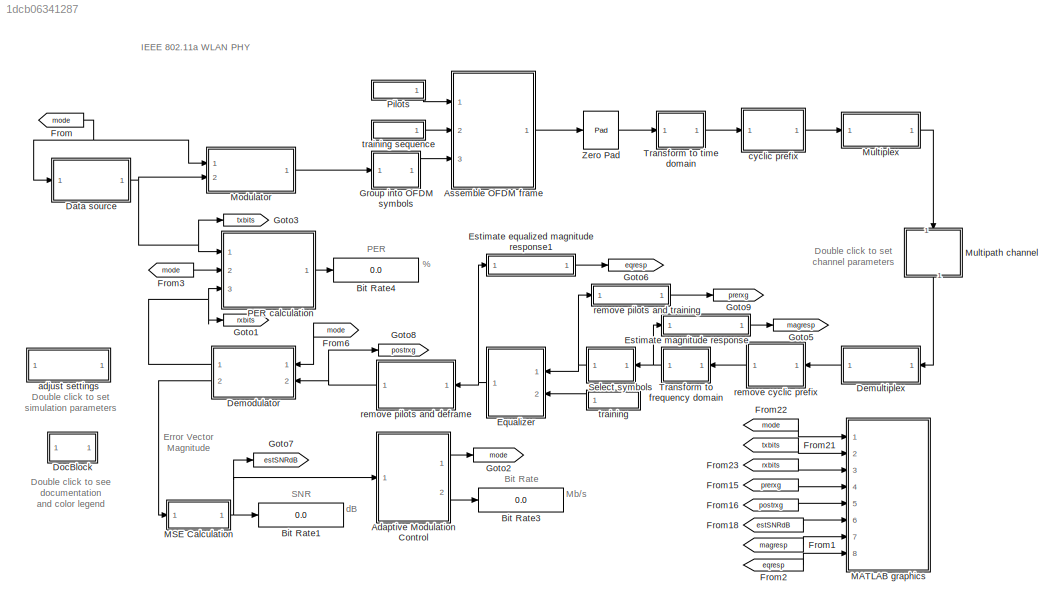
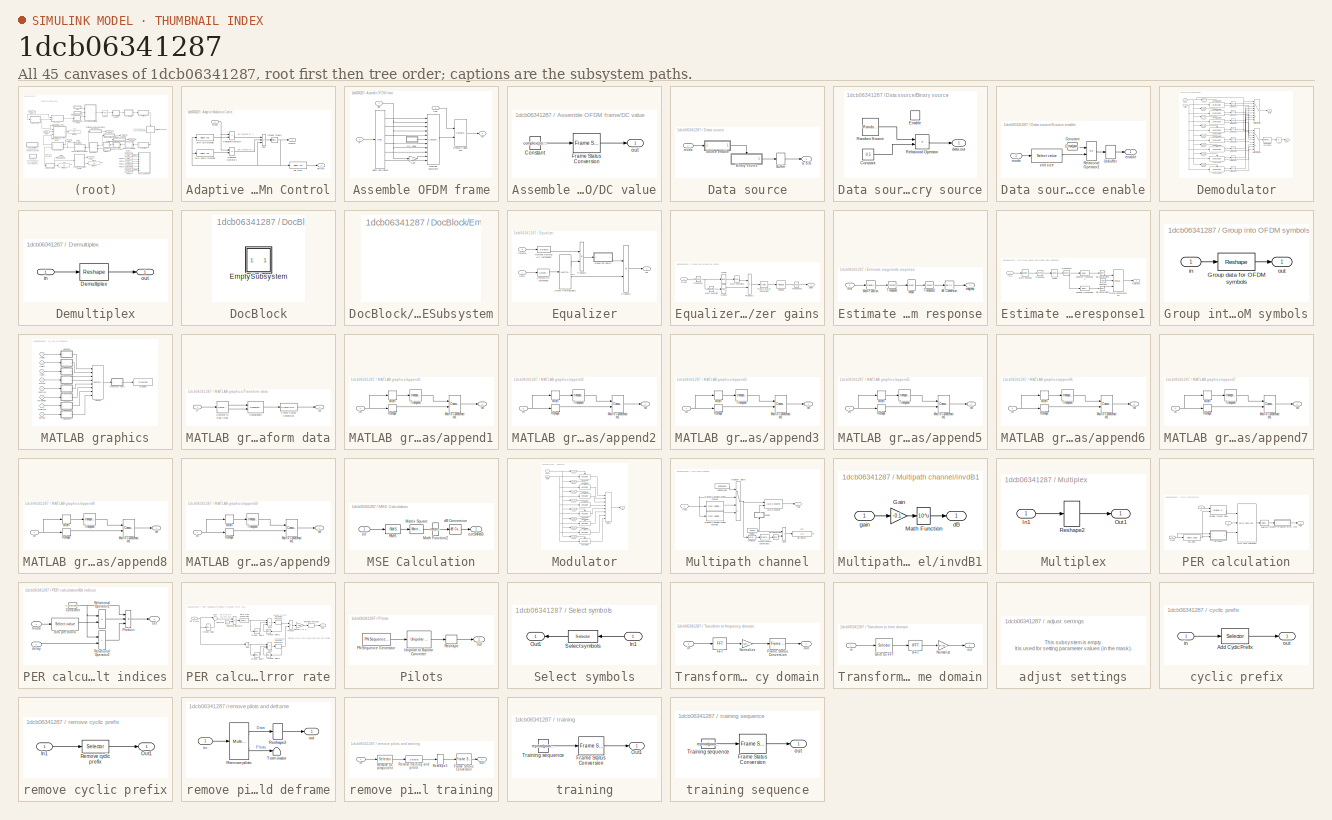
[diagram: thumbnail index - all 45 canvases of the model, root first then tree order]
MODEL slx_1dcb06341287
KIND model
CONFIG AbsTol = auto
CONFIG EnableMultiTasking = off
CONFIG FixedStep = auto
CONFIG MaxStep = auto
CONFIG MinStep = auto
CONFIG PreLoadFcn = load IEEE80211a_init;
CONFIG RelTol = 1e-3
CONFIG SampleTimeConstraint = Unconstrained
CONFIG SolverName = FixedStepDiscrete
CONFIG StartTime = 0.0
CONFIG StopTime = inf
BLOCK [SubSystem] Adaptive Modulation Control
  Ports = [1, 2]
  RequestExecContextInheritance = off
BLOCK [Sum] Adaptive Modulation Control/Add1
  IconShape = rectangular
  Inputs = +-+
  OutDataTypeStr = double
  Ports = [3, 1]
BLOCK [Reference] Adaptive Modulation Control/Bit Rate  REF=IEEE80211a_lib/Select value
  Ports = [1, 1]
  SourceBlock = IEEE80211a_lib/Select value
BLOCK [Reference] Adaptive Modulation Control/Integer Delay2  REF=dspobslib/Integer Delay
  AttributesFormatString = \n
  Ports = [1, 1]
  SourceBlock = dspobslib/Integer Delay
  SourceProductBaseCode = DS
  SourceType = Integer Delay
BLOCK [RelationalOperator] Adaptive Modulation Control/Relational Operator
  InputSameDT = off
  Operator = >
  Ports = [2, 1]
BLOCK [RelationalOperator] Adaptive Modulation Control/Relational Operator1
  InputSameDT = off
  Operator = <=
  Ports = [2, 1]
BLOCK [Reference] Adaptive Modulation Control/SNR down threshold  REF=IEEE80211a_lib/Select value
  Ports = [1, 1]
  SourceBlock = IEEE80211a_lib/Select value
BLOCK [Reference] Adaptive Modulation Control/SNR up threshold  REF=IEEE80211a_lib/Select value
  Ports = [1, 1]
  SourceBlock = IEEE80211a_lib/Select value
BLOCK [Outport] Adaptive Modulation Control/birRate
  Port = 2
BLOCK [Outport] Adaptive Modulation Control/modIdx
BLOCK [Inport] Adaptive Modulation Control/snrEst
BLOCK [SubSystem] Assemble OFDM frame
  Ports = [3, 1]
  RequestExecContextInheritance = off
BLOCK [Concatenate] Assemble OFDM frame/Assemble Subcarriers
  Mode = Multidimensional array
  NumInputs = 11
  Ports = [11, 1]
BLOCK [SubSystem] Assemble OFDM frame/DC value
  Ports = [0, 1]
  RequestExecContextInheritance = off
BLOCK [Constant] Assemble OFDM frame/DC value/Constant
  Value = complex(zeros(1,params.OFDMSymPerFrame))
  VectorParams1D = off
BLOCK [Reference] Assemble OFDM frame/DC value/Frame Status Conversion  REF=dspobslib/Frame Status
Conversion
  Ports = [1, 1]
  SourceBlock = dspobslib/Frame Status\nConversion
  SourceProductBaseCode = DS
  SourceType = Frame Status Conversion
BLOCK [Outport] Assemble OFDM frame/DC value/out
BLOCK [Gain] Assemble OFDM frame/Gain
  Gain = -1
  OutDataTypeStr = Inherit: Same as input
  ParamDataTypeStr = Inherit: Same as input
  SaturateOnIntegerOverflow = on
BLOCK [Concatenate] Assemble OFDM frame/Prepend training seq
  ConcatenateDimension = 2
  Mode = Multidimensional array
  Ports = [2, 1]
BLOCK [Reference] Assemble OFDM frame/Select data blocks  REF=dspindex/Multiport
Selector
  Ports = [1, 6]
  SourceBlock = dspindex/Multiport\nSelector
  SourceProductBaseCode = DS
  SourceType = Multiport Selector
BLOCK [Inport] Assemble OFDM frame/in
  Port = 3
BLOCK [Outport] Assemble OFDM frame/out
BLOCK [Inport] Assemble OFDM frame/pilot
BLOCK [Inport] Assemble OFDM frame/train
  Port = 2
BLOCK [Display] Bit Rate1
  Decimation = 1
  Ports = [1]
BLOCK [Display] Bit Rate3
  Decimation = 1
  Ports = [1]
BLOCK [Display] Bit Rate4
  Decimation = 1
  Ports = [1]
BLOCK [SubSystem] Data source
  Ports = [1, 1]
  RequestExecContextInheritance = off
BLOCK [SubSystem] Data source/Binary source
  Ports = [0, 1, 1]
  RequestExecContextInheritance = off
  TreatAsAtomicUnit = on
BLOCK [Constant] Data source/Binary source/Constant
  Value = 0.5
BLOCK [EnablePort] Data source/Binary source/Enable
  Ports = []
BLOCK [Reference] Data source/Binary source/Random Source  REF=dspsrcs4/Random
Source
  Ports = [0, 1]
  SourceBlock = dspsrcs4/Random\nSource
  SourceProductBaseCode = DS
  SourceType = Random Source
BLOCK [RelationalOperator] Data source/Binary source/Relational Operator
  Operator = >
  OutDataTypeStr = float('double')
  Ports = [2, 1]
BLOCK [Outport] Data source/Binary source/data out
  InitialOutput = 0
  OutputWhenDisabled = reset
BLOCK [Buffer] Data source/Buffer
  N = params.maxBitsPerBlock
BLOCK [SubSystem] Data source/Source enable
  Ports = [1, 1]
  RequestExecContextInheritance = off
BLOCK [Constant] Data source/Source enable/Constant
  Value = (1:max(params.nS)).'
BLOCK [RelationalOperator] Data source/Source enable/Relational Operator1
  Operator = <=
  OutDataTypeStr = float('double')
  Ports = [2, 1]
BLOCK [Unbuffer] Data source/Source enable/Unbuffer
  Ports = [1, 1]
BLOCK [Outport] Data source/Source enable/enable
BLOCK [Inport] Data source/Source enable/mode
BLOCK [Reference] Data source/Source enable/slot size  REF=IEEE80211a_lib/Select value
  Ports = [1, 1]
  SourceBlock = IEEE80211a_lib/Select value
BLOCK [Inport] Data source/mode
BLOCK [Outport] Data source/tx bits
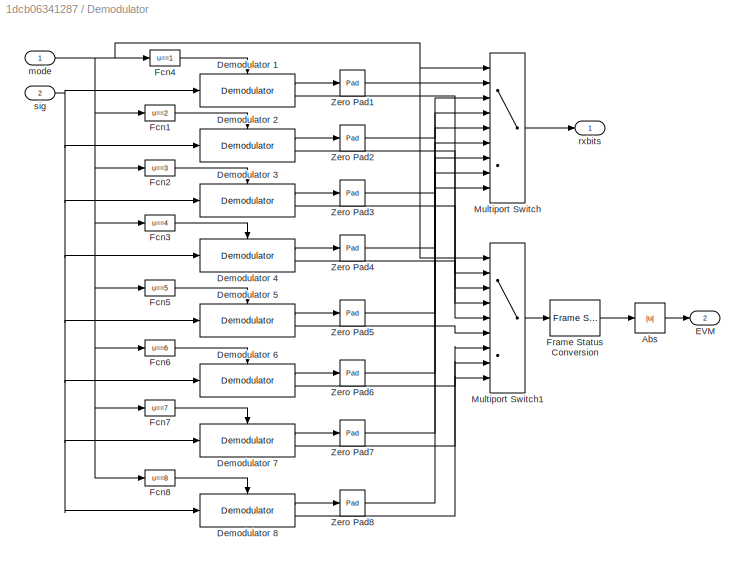
BLOCK [SubSystem] Demodulator
  Ports = [2, 2]
  RequestExecContextInheritance = off
BLOCK [Abs] Demodulator/Abs
BLOCK [Reference] Demodulator/Demodulator 1  REF=IEEE80211a_lib/Demodulator
  Ports = [1, 2, 1]
  SourceBlock = IEEE80211a_lib/Demodulator
  SourceType = QAM Demodulator-Decoder.
BLOCK [Reference] Demodulator/Demodulator 2  REF=IEEE80211a_lib/Demodulator
  Ports = [1, 2, 1]
  SourceBlock = IEEE80211a_lib/Demodulator
  SourceType = QAM Demodulator-Decoder.
BLOCK [Reference] Demodulator/Demodulator 3  REF=IEEE80211a_lib/Demodulator
  Ports = [1, 2, 1]
  SourceBlock = IEEE80211a_lib/Demodulator
  SourceType = QAM Demodulator-Decoder.
BLOCK [Reference] Demodulator/Demodulator 4  REF=IEEE80211a_lib/Demodulator
  Ports = [1, 2, 1]
  SourceBlock = IEEE80211a_lib/Demodulator
  SourceType = QAM Demodulator-Decoder.
BLOCK [Reference] Demodulator/Demodulator 5  REF=IEEE80211a_lib/Demodulator
  Ports = [1, 2, 1]
  SourceBlock = IEEE80211a_lib/Demodulator
  SourceType = QAM Demodulator-Decoder.
BLOCK [Reference] Demodulator/Demodulator 6  REF=IEEE80211a_lib/Demodulator
  Ports = [1, 2, 1]
  SourceBlock = IEEE80211a_lib/Demodulator
  SourceType = QAM Demodulator-Decoder.
BLOCK [Reference] Demodulator/Demodulator 7  REF=IEEE80211a_lib/Demodulator
  Ports = [1, 2, 1]
  SourceBlock = IEEE80211a_lib/Demodulator
  SourceType = QAM Demodulator-Decoder.
BLOCK [Reference] Demodulator/Demodulator 8  REF=IEEE80211a_lib/Demodulator
  Ports = [1, 2, 1]
  SourceBlock = IEEE80211a_lib/Demodulator
  SourceType = QAM Demodulator-Decoder.
BLOCK [Outport] Demodulator/EVM
  Port = 2
BLOCK [Fcn] Demodulator/Fcn1
  Expr = u==2
BLOCK [Fcn] Demodulator/Fcn2
  Expr = u==3
BLOCK [Fcn] Demodulator/Fcn3
  Expr = u==4
BLOCK [Fcn] Demodulator/Fcn4
  Expr = u==1
BLOCK [Fcn] Demodulator/Fcn5
  Expr = u==5
BLOCK [Fcn] Demodulator/Fcn6
  Expr = u==6
BLOCK [Fcn] Demodulator/Fcn7
  Expr = u==7
BLOCK [Fcn] Demodulator/Fcn8
  Expr = u==8
BLOCK [Reference] Demodulator/Frame Status Conversion  REF=dspobslib/Frame Status
Conversion
  Ports = [1, 1]
  SourceBlock = dspobslib/Frame Status\nConversion
  SourceProductBaseCode = DS
  SourceType = Frame Status Conversion
BLOCK [MultiPortSwitch] Demodulator/Multiport Switch
  InputSameDT = off
  Inputs = 8
  Ports = [9, 1]
BLOCK [MultiPortSwitch] Demodulator/Multiport Switch1
  InputSameDT = off
  Inputs = 8
  Ports = [9, 1]
BLOCK [Reference] Demodulator/Zero Pad1  REF=dspsigops/Pad
  AttributesFormatString = \n
  Ports = [1, 1]
  SourceBlock = dspsigops/Pad
  SourceProductBaseCode = DS
  SourceType = Pad
BLOCK [Reference] Demodulator/Zero Pad2  REF=dspsigops/Pad
  AttributesFormatString = \n
  Ports = [1, 1]
  SourceBlock = dspsigops/Pad
  SourceProductBaseCode = DS
  SourceType = Pad
BLOCK [Reference] Demodulator/Zero Pad3  REF=dspsigops/Pad
  AttributesFormatString = \n
  Ports = [1, 1]
  SourceBlock = dspsigops/Pad
  SourceProductBaseCode = DS
  SourceType = Pad
BLOCK [Reference] Demodulator/Zero Pad4  REF=dspsigops/Pad
  AttributesFormatString = \n
  Ports = [1, 1]
  SourceBlock = dspsigops/Pad
  SourceProductBaseCode = DS
  SourceType = Pad
BLOCK [Reference] Demodulator/Zero Pad5  REF=dspsigops/Pad
  AttributesFormatString = \n
  Ports = [1, 1]
  SourceBlock = dspsigops/Pad
  SourceProductBaseCode = DS
  SourceType = Pad
BLOCK [Reference] Demodulator/Zero Pad6  REF=dspsigops/Pad
  AttributesFormatString = \n
  Ports = [1, 1]
  SourceBlock = dspsigops/Pad
  SourceProductBaseCode = DS
  SourceType = Pad
BLOCK [Reference] Demodulator/Zero Pad7  REF=dspsigops/Pad
  AttributesFormatString = \n
  Ports = [1, 1]
  SourceBlock = dspsigops/Pad
  SourceProductBaseCode = DS
  SourceType = Pad
BLOCK [Reference] Demodulator/Zero Pad8  REF=dspsigops/Pad
  AttributesFormatString = \n
  Ports = [1, 1]
  SourceBlock = dspsigops/Pad
  SourceProductBaseCode = DS
  SourceType = Pad
BLOCK [Inport] Demodulator/mode
BLOCK [Outport] Demodulator/rxbits
BLOCK [Inport] Demodulator/sig
  Port = 2
BLOCK [SubSystem] Demultiplex
  Ports = [1, 1]
  RequestExecContextInheritance = off
BLOCK [Reshape] Demultiplex/Demultiplex
  OutputDimensionality = Customize
  OutputDimensions = [params.NFFT2  params.OFDMTotSymPerFrame]
  Ports = [1, 1]
BLOCK [Inport] Demultiplex/in
BLOCK [Outport] Demultiplex/out
BLOCK [SubSystem] DocBlock
  CopyFcn = docblock('breaklink',gcb);
  DeleteFcn = docblock('close_document',gcb);
  OpenFcn = docblock('edit_document',gcb);
  Ports = []
  PreSaveFcn = docblock('save_document',gcb);
  RequestExecContextInheritance = off
  UserDataPersistent = on
BLOCK [SubSystem] DocBlock/EmptySubsystem
  Ports = []
  RequestExecContextInheritance = off
BLOCK [SubSystem] Equalizer
  Ports = [2, 1]
  RequestExecContextInheritance = off
BLOCK [SubSystem] Equalizer/Equalizer gains
  Ports = [1, 1]
  RequestExecContextInheritance = off
BLOCK [Reference] Equalizer/Equalizer gains/Frame Status Conversion  REF=dspobslib/Frame Status
Conversion
  Ports = [1, 1]
  SourceBlock = dspobslib/Frame Status\nConversion
  SourceProductBaseCode = DS
  SourceType = Frame Status Conversion
BLOCK [Math] Equalizer/Equalizer gains/Math Function
  Operator = magnitude^2
  Ports = [1, 1]
  SignedPower = on
BLOCK [Math] Equalizer/Equalizer gains/Math Function1
  Operator = conj
  Ports = [1, 1]
  SignedPower = on
BLOCK [Reference] Equalizer/Equalizer gains/Mean  REF=dspstat3/Mean
  Ports = [1, 1]
  SourceBlock = dspstat3/Mean
  SourceProductBaseCode = DS
  SourceType = Mean
BLOCK [Reference] Equalizer/Equalizer gains/Mean1  REF=dspstat3/Mean
  Ports = [1, 1]
  SourceBlock = dspstat3/Mean
  SourceProductBaseCode = DS
  SourceType = Mean
BLOCK [Product] Equalizer/Equalizer gains/Product3
  Inputs = */
  OutDataTypeStr = Inherit: Same as first input
  Ports = [2, 1]
  SaturateOnIntegerOverflow = on
BLOCK [Reference] Equalizer/Equalizer gains/Repeat  REF=dspsigops/Repeat
  Ports = [1, 1]
  SourceBlock = dspsigops/Repeat
  SourceProductBaseCode = DS
  SourceType = Repeat
BLOCK [Math] Equalizer/Equalizer gains/Transpose
  Operator = transpose
  Ports = [1, 1]
BLOCK [Math] Equalizer/Equalizer gains/Transpose1
  Operator = transpose
  Ports = [1, 1]
BLOCK [Inport] Equalizer/Equalizer gains/ch est
BLOCK [Outport] Equalizer/Equalizer gains/gains
BLOCK [Product] Equalizer/Product1
  Inputs = /*
  OutDataTypeStr = Inherit: Same as first input
  Ports = [2, 1]
  SaturateOnIntegerOverflow = on
BLOCK [Product] Equalizer/Product2
  Inputs = **
  OutDataTypeStr = Inherit: Same as first input
  Ports = [2, 1]
  SaturateOnIntegerOverflow = on
BLOCK [Selector] Equalizer/Remove DC component
  IndexOptions = Index vector (dialog),Select all
  Indices = [1:26 28:53],-1
  InputPortWidth = 53
  NumberOfDimensions = 2
  OutputSizes = 1
  Ports = [1, 1]
BLOCK [Selector] Equalizer/Remove training DC component
  IndexOptions = Index vector (dialog),Select all
  Indices = [1:26 28:53],-1
  InputPortWidth = 53
  NumberOfDimensions = 2
  OutputSizes = 1
  Ports = [1, 1]
BLOCK [Reference] Equalizer/Select training//data  REF=dspindex/Multiport
Selector
  Ports = [1, 2]
  SourceBlock = dspindex/Multiport\nSelector
  SourceProductBaseCode = DS
  SourceType = Multiport Selector
BLOCK [Outport] Equalizer/out
BLOCK [Inport] Equalizer/rxsig
BLOCK [Inport] Equalizer/trainsig
  Port = 2
BLOCK [SubSystem] Estimate equalized magnitude response1
  Ports = [1, 1]
  RequestExecContextInheritance = off
BLOCK [Constant] Estimate equalized magnitude response1/Constant
  Value = NaN
BLOCK [Math] Estimate equalized magnitude response1/Math Function
  Operator = magnitude^2
  Ports = [1, 1]
  SignedPower = on
BLOCK [Concatenate] Estimate equalized magnitude response1/Matrix Concatenation
  Mode = Multidimensional array
  NumInputs = 3
  Ports = [3, 1]
BLOCK [Reference] Estimate equalized magnitude response1/Mean  REF=dspstat3/Mean
  Ports = [1, 1]
  SourceBlock = dspstat3/Mean
  SourceProductBaseCode = DS
  SourceType = Mean
BLOCK [Math] Estimate equalized magnitude response1/Transpose
  Operator = transpose
  Ports = [1, 1]
BLOCK [Math] Estimate equalized magnitude response1/Transpose1
  Operator = transpose
  Ports = [1, 1]
BLOCK [Reference] Estimate equalized magnitude response1/dB Conversion1  REF=dspmathops/dB Conversion
  Ports = [1, 1]
  SourceBlock = dspmathops/dB Conversion
  SourceProductBaseCode = DS
  SourceType = dB Conversion
BLOCK [Reference] Estimate equalized magnitude response1/dB Conversion2  REF=dspmathops/dB Conversion
  Ports = [1, 1]
  SourceBlock = dspmathops/dB Conversion
  SourceProductBaseCode = DS
  SourceType = dB Conversion
BLOCK [Inport] Estimate equalized magnitude response1/ffts
BLOCK [Outport] Estimate equalized magnitude response1/magresp
BLOCK [Selector] Estimate equalized magnitude response1/negative frequencies
  IndexOptions = Index vector (dialog)
  Indices = [1:params.NST/2]
  InputPortWidth = params.NST
  OutputSizes = 1
  Ports = [1, 1]
BLOCK [Selector] Estimate equalized magnitude response1/positive frequencies
  IndexOptions = Index vector (dialog)
  Indices = params.NST/2+1:params.NST
  InputPortWidth = params.NST
  OutputSizes = 1
  Ports = [1, 1]
BLOCK [SubSystem] Estimate magnitude response
  Ports = [1, 1]
  RequestExecContextInheritance = off
BLOCK [Math] Estimate magnitude response/Math Function
  Operator = magnitude^2
  Ports = [1, 1]
  SignedPower = on
BLOCK [Reference] Estimate magnitude response/Mean  REF=dspstat3/Mean
  Ports = [1, 1]
  SourceBlock = dspstat3/Mean
  SourceProductBaseCode = DS
  SourceType = Mean
BLOCK [Math] Estimate magnitude response/Transpose
  Operator = transpose
  Ports = [1, 1]
BLOCK [Math] Estimate magnitude response/Transpose1
  Operator = transpose
  Ports = [1, 1]
BLOCK [Reference] Estimate magnitude response/dB Conversion  REF=dspmathops/dB Conversion
  Ports = [1, 1]
  SourceBlock = dspmathops/dB Conversion
  SourceProductBaseCode = DS
  SourceType = dB Conversion
BLOCK [Inport] Estimate magnitude response/ffts
BLOCK [Outport] Estimate magnitude response/magresp
BLOCK [From] From
  GotoTag = mode
BLOCK [From] From1
  GotoTag = magresp
BLOCK [From] From15
  GotoTag = prerxg
BLOCK [From] From16
  GotoTag = postrxg
BLOCK [From] From18
  GotoTag = estSNRdB
BLOCK [From] From2
  GotoTag = eqresp
BLOCK [From] From21
  GotoTag = txbits
BLOCK [From] From22
  GotoTag = mode
BLOCK [From] From23
  GotoTag = rxbits
BLOCK [From] From3
  GotoTag = mode
BLOCK [From] From6
  GotoTag = mode
  NameLocation = top
BLOCK [Goto] Goto1
  GotoTag = rxbits
BLOCK [Goto] Goto2
  GotoTag = mode
BLOCK [Goto] Goto3
  GotoTag = txbits
BLOCK [Goto] Goto5
  GotoTag = magresp
BLOCK [Goto] Goto6
  GotoTag = eqresp
BLOCK [Goto] Goto7
  GotoTag = estSNRdB
BLOCK [Goto] Goto8
  GotoTag = postrxg
BLOCK [Goto] Goto9
  GotoTag = prerxg
  NameLocation = top
BLOCK [SubSystem] Group into OFDM symbols
  Ports = [1, 1]
  RequestExecContextInheritance = off
BLOCK [Reshape] Group into OFDM symbols/Group data for OFDM symbols 
  OutputDimensionality = Customize
  OutputDimensions = [params.NSD params.OFDMSymPerFrame]
  Ports = [1, 1]
BLOCK [Inport] Group into OFDM symbols/in
BLOCK [Outport] Group into OFDM symbols/out
BLOCK [SubSystem] MATLAB graphics
  OpenFcn = IEEE80211a_open_graphics(gcb, 0);
  Ports = [8]
  RequestExecContextInheritance = off
BLOCK [SubSystem] MATLAB graphics/Transform data
  Ports = [1, 1]
  RequestExecContextInheritance = off
BLOCK [ComplexToRealImag] MATLAB graphics/Transform data/Complex to Real-Imag
  Ports = [1, 2]
BLOCK [Concatenate] MATLAB graphics/Transform data/Concatenate
  ConcatenateDimension = 2
  Mode = Multidimensional array
  Ports = [2, 1]
BLOCK [Reference] MATLAB graphics/Transform data/Frame Status Conversion  REF=dspobslib/Frame Status
Conversion
  Ports = [1, 1]
  SourceBlock = dspobslib/Frame Status\nConversion
  SourceProductBaseCode = DS
  SourceType = Frame Status Conversion
BLOCK [Inport] MATLAB graphics/Transform data/in
BLOCK [Outport] MATLAB graphics/Transform data/out
BLOCK [SubSystem] MATLAB graphics/append1
  Ports = [1, 1]
  RequestExecContextInheritance = off
BLOCK [Concatenate] MATLAB graphics/append1/Matrix Concatenation1
  Mode = Multidimensional array
  Ports = [2, 1]
BLOCK [Reshape] MATLAB graphics/append1/Reshape
  OutputDimensionality = Column vector (2-D)
  Ports = [1, 1]
BLOCK [Math] MATLAB graphics/append1/Transpose
  AttributesFormatString = \n
  Operator = transpose
  Ports = [1, 1]
BLOCK [Width] MATLAB graphics/append1/Width
BLOCK [Inport] MATLAB graphics/append1/in
BLOCK [Outport] MATLAB graphics/append1/out
BLOCK [SubSystem] MATLAB graphics/append2
  Ports = [1, 1]
  RequestExecContextInheritance = off
BLOCK [Concatenate] MATLAB graphics/append2/Matrix Concatenation1
  Mode = Multidimensional array
  Ports = [2, 1]
BLOCK [Reshape] MATLAB graphics/append2/Reshape
  OutputDimensionality = Column vector (2-D)
  Ports = [1, 1]
BLOCK [Math] MATLAB graphics/append2/Transpose
  AttributesFormatString = \n
  Operator = transpose
  Ports = [1, 1]
BLOCK [Width] MATLAB graphics/append2/Width
BLOCK [Inport] MATLAB graphics/append2/in
BLOCK [Outport] MATLAB graphics/append2/out
BLOCK [SubSystem] MATLAB graphics/append3
  Ports = [1, 1]
  RequestExecContextInheritance = off
BLOCK [Concatenate] MATLAB graphics/append3/Matrix Concatenation1
  Mode = Multidimensional array
  Ports = [2, 1]
BLOCK [Reshape] MATLAB graphics/append3/Reshape
  OutputDimensionality = Column vector (2-D)
  Ports = [1, 1]
BLOCK [Math] MATLAB graphics/append3/Transpose
  AttributesFormatString = \n
  Operator = transpose
  Ports = [1, 1]
BLOCK [Width] MATLAB graphics/append3/Width
BLOCK [Inport] MATLAB graphics/append3/in
BLOCK [Outport] MATLAB graphics/append3/out
BLOCK [SubSystem] MATLAB graphics/append5
  Ports = [1, 1]
  RequestExecContextInheritance = off
BLOCK [Concatenate] MATLAB graphics/append5/Matrix Concatenation1
  Mode = Multidimensional array
  Ports = [2, 1]
BLOCK [Reshape] MATLAB graphics/append5/Reshape
  OutputDimensionality = Column vector (2-D)
  Ports = [1, 1]
BLOCK [Math] MATLAB graphics/append5/Transpose
  AttributesFormatString = \n
  Operator = transpose
  Ports = [1, 1]
BLOCK [Width] MATLAB graphics/append5/Width
BLOCK [Inport] MATLAB graphics/append5/in
BLOCK [Outport] MATLAB graphics/append5/out
BLOCK [SubSystem] MATLAB graphics/append6
  Ports = [1, 1]
  RequestExecContextInheritance = off
BLOCK [Concatenate] MATLAB graphics/append6/Matrix Concatenation1
  Mode = Multidimensional array
  Ports = [2, 1]
BLOCK [Reshape] MATLAB graphics/append6/Reshape
  OutputDimensionality = Column vector (2-D)
  Ports = [1, 1]
BLOCK [Math] MATLAB graphics/append6/Transpose
  AttributesFormatString = \n
  Operator = transpose
  Ports = [1, 1]
BLOCK [Width] MATLAB graphics/append6/Width
BLOCK [Inport] MATLAB graphics/append6/in
BLOCK [Outport] MATLAB graphics/append6/out
BLOCK [SubSystem] MATLAB graphics/append7
  Ports = [1, 1]
  RequestExecContextInheritance = off
BLOCK [Concatenate] MATLAB graphics/append7/Matrix Concatenation1
  Mode = Multidimensional array
  Ports = [2, 1]
BLOCK [Reshape] MATLAB graphics/append7/Reshape
  OutputDimensionality = Column vector (2-D)
  Ports = [1, 1]
BLOCK [Math] MATLAB graphics/append7/Transpose
  AttributesFormatString = \n
  Operator = transpose
  Ports = [1, 1]
BLOCK [Width] MATLAB graphics/append7/Width
BLOCK [Inport] MATLAB graphics/append7/in
BLOCK [Outport] MATLAB graphics/append7/out
BLOCK [SubSystem] MATLAB graphics/append8
  Ports = [1, 1]
  RequestExecContextInheritance = off
BLOCK [Concatenate] MATLAB graphics/append8/Matrix Concatenation1
  Mode = Multidimensional array
  Ports = [2, 1]
BLOCK [Reshape] MATLAB graphics/append8/Reshape
  OutputDimensionality = Column vector (2-D)
  Ports = [1, 1]
BLOCK [Math] MATLAB graphics/append8/Transpose
  AttributesFormatString = \n
  Operator = transpose
  Ports = [1, 1]
BLOCK [Width] MATLAB graphics/append8/Width
BLOCK [Inport] MATLAB graphics/append8/in
BLOCK [Outport] MATLAB graphics/append8/out
BLOCK [SubSystem] MATLAB graphics/append9
  Ports = [1, 1]
  RequestExecContextInheritance = off
BLOCK [Concatenate] MATLAB graphics/append9/Matrix Concatenation1
  Mode = Multidimensional array
  Ports = [2, 1]
BLOCK [Reshape] MATLAB graphics/append9/Reshape
  OutputDimensionality = Column vector (2-D)
  Ports = [1, 1]
BLOCK [Math] MATLAB graphics/append9/Transpose
  AttributesFormatString = \n
  Operator = transpose
  Ports = [1, 1]
BLOCK [Width] MATLAB graphics/append9/Width
BLOCK [Inport] MATLAB graphics/append9/in
BLOCK [Outport] MATLAB graphics/append9/out
BLOCK [Concatenate] MATLAB graphics/concat
  Mode = Multidimensional array
  NumInputs = 8
  Ports = [8, 1]
BLOCK [Inport] MATLAB graphics/eqresp
  Port = 8
BLOCK [Inport] MATLAB graphics/estSNRdB
  Port = 6
BLOCK [S-Function] MATLAB graphics/graphics
  EnableBusSupport = off
  FunctionName = IEEE80211a_udg
  Parameters = {input_names, extraParams}
  Ports = [1]
  SFcnIsStateOwnerBlock = off
  SFunctionDeploymentMode = off
BLOCK [Inport] MATLAB graphics/magresp
  Port = 7
BLOCK [Inport] MATLAB graphics/mode
BLOCK [Inport] MATLAB graphics/postrxg
  Port = 5
BLOCK [Inport] MATLAB graphics/prerxg
  Port = 4
BLOCK [Inport] MATLAB graphics/rxbits
  Port = 3
BLOCK [Inport] MATLAB graphics/txbits
  Port = 2
BLOCK [SubSystem] MSE Calculation
  Ports = [1, 1]
  RequestExecContextInheritance = off
BLOCK [Math] MSE Calculation/Math Function2
  Operator = reciprocal
  Ports = [1, 1]
  SignedPower = on
BLOCK [Reference] MSE Calculation/Matrix Square  REF=dspmtrx3/Matrix
Square
  Ports = [1, 1]
  SourceBlock = dspmtrx3/Matrix\nSquare
  SourceProductBaseCode = DS
  SourceType = Matrix Square
BLOCK [Reference] MSE Calculation/RMS  REF=dspstat3/RMS
  Ports = [1, 1]
  SourceBlock = dspstat3/RMS
  SourceProductBaseCode = DS
  SourceType = RMS
BLOCK [Reference] MSE Calculation/dB Conversion  REF=dspmathops/dB Conversion
  Ports = [1, 1]
  SourceBlock = dspmathops/dB Conversion
  SourceProductBaseCode = DS
  SourceType = dB Conversion
BLOCK [Inport] MSE Calculation/err
BLOCK [Outport] MSE Calculation/estSNRdB
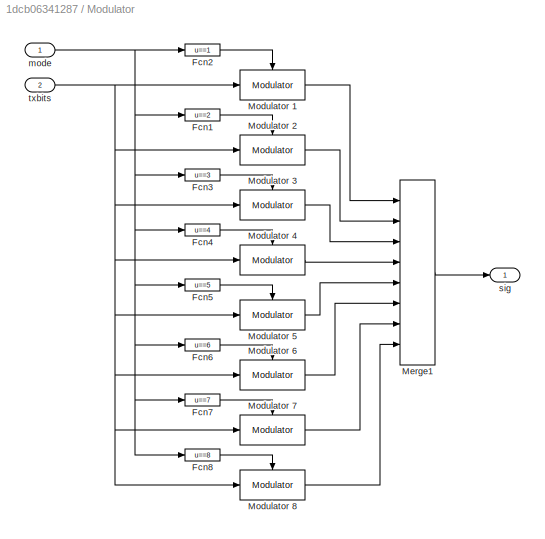
BLOCK [SubSystem] Modulator
  Ports = [2, 1]
  RequestExecContextInheritance = off
BLOCK [Fcn] Modulator/Fcn1
  Expr = u==2
BLOCK [Fcn] Modulator/Fcn2
  Expr = u==1
BLOCK [Fcn] Modulator/Fcn3
  Expr = u==3
BLOCK [Fcn] Modulator/Fcn4
  Expr = u==4
BLOCK [Fcn] Modulator/Fcn5
  Expr = u==5
BLOCK [Fcn] Modulator/Fcn6
  Expr = u==6
BLOCK [Fcn] Modulator/Fcn7
  Expr = u==7
BLOCK [Fcn] Modulator/Fcn8
  Expr = u==8
BLOCK [Merge] Modulator/Merge1
  Inputs = 8
  Ports = [8, 1]
BLOCK [Reference] Modulator/Modulator 1  REF=IEEE80211a_lib/Modulator
  Ports = [1, 1, 1]
  SourceBlock = IEEE80211a_lib/Modulator
  SourceType = QAM Modulator-Coder.
BLOCK [Reference] Modulator/Modulator 2  REF=IEEE80211a_lib/Modulator
  Ports = [1, 1, 1]
  SourceBlock = IEEE80211a_lib/Modulator
  SourceType = QAM Modulator-Coder.
BLOCK [Reference] Modulator/Modulator 3  REF=IEEE80211a_lib/Modulator
  Ports = [1, 1, 1]
  SourceBlock = IEEE80211a_lib/Modulator
  SourceType = QAM Modulator-Coder.
BLOCK [Reference] Modulator/Modulator 4  REF=IEEE80211a_lib/Modulator
  Ports = [1, 1, 1]
  SourceBlock = IEEE80211a_lib/Modulator
  SourceType = QAM Modulator-Coder.
BLOCK [Reference] Modulator/Modulator 5  REF=IEEE80211a_lib/Modulator
  Ports = [1, 1, 1]
  SourceBlock = IEEE80211a_lib/Modulator
  SourceType = QAM Modulator-Coder.
BLOCK [Reference] Modulator/Modulator 6  REF=IEEE80211a_lib/Modulator
  Ports = [1, 1, 1]
  SourceBlock = IEEE80211a_lib/Modulator
  SourceType = QAM Modulator-Coder.
BLOCK [Reference] Modulator/Modulator 7  REF=IEEE80211a_lib/Modulator
  Ports = [1, 1, 1]
  SourceBlock = IEEE80211a_lib/Modulator
  SourceType = QAM Modulator-Coder.
BLOCK [Reference] Modulator/Modulator 8  REF=IEEE80211a_lib/Modulator
  Ports = [1, 1, 1]
  SourceBlock = IEEE80211a_lib/Modulator
  SourceType = QAM Modulator-Coder.
BLOCK [Inport] Modulator/mode
BLOCK [Outport] Modulator/sig
BLOCK [Inport] Modulator/txbits
  Port = 2
BLOCK [SubSystem] Multipath channel
  NameLocation = left
  Ports = [1, 1]
  RequestExecContextInheritance = off
BLOCK [Reference] Multipath channel/AWGN Channel  REF=commchan3/AWGN
Channel
  Ports = [2, 1]
  SourceBlock = commchan3/AWGN\nChannel
  SourceProductBaseCode = CM
  SourceType = AWGN Channel
BLOCK [Display] Multipath channel/Bit Rate5
  Decimation = 1
  Ports = [1]
BLOCK [Reference] Multipath channel/Frame Status Conversion1  REF=dspobslib/Frame Status
Conversion
  Ports = [1, 1]
  SourceBlock = dspobslib/Frame Status\nConversion
  SourceProductBaseCode = DS
  SourceType = Frame Status Conversion
BLOCK [Reference] Multipath channel/Multipath Rayleigh Fading Channel  REF=commchan3/SISO Fading Channel
  Ports = [1, 1]
  SourceBlock = commchan3/SISO Fading Channel
  SourceProductBaseCode = CM
  SourceType = SISO Fading Channel
BLOCK [Reference] Multipath channel/Multipath Rayleigh Fading Channel3  REF=commchan3/SISO Fading Channel
  Ports = [1, 1]
  SourceBlock = commchan3/SISO Fading Channel
  SourceProductBaseCode = CM
  SourceType = SISO Fading Channel
BLOCK [MultiPortSwitch] Multipath channel/Multiport Switch
  InputSameDT = off
  Ports = [4, 1]
BLOCK [Constant] Multipath channel/SNRdB
  Value = SNRdB
BLOCK [Sum] Multipath channel/Sum
  IconShape = rectangular
  Ports = [2, 1]
  SaturateOnIntegerOverflow = on
BLOCK [Reference] Multipath channel/Variance  REF=dspstat3/Variance
  Ports = [1, 1]
  SourceBlock = dspstat3/Variance
  SourceProductBaseCode = DS
  SourceType = Variance
BLOCK [Reference] Multipath channel/dB Conversion1  REF=dspmathops/dB Conversion
  Ports = [1, 1]
  SourceBlock = dspmathops/dB Conversion
  SourceProductBaseCode = DS
  SourceType = dB Conversion
BLOCK [Constant] Multipath channel/fadingMode
  Value = fadingMode
BLOCK [SubSystem] Multipath channel/invdB1
  NameLocation = right
  Ports = [1, 1]
  RequestExecContextInheritance = off
BLOCK [Gain] Multipath channel/invdB1/Gain
  Gain = -0.1
  OutDataTypeStr = Inherit: Same as input
  ParamDataTypeStr = Inherit: Same as input
  SaturateOnIntegerOverflow = on
BLOCK [Math] Multipath channel/invdB1/Math Function
  Operator = 10^u
  Ports = [1, 1]
  SignedPower = on
BLOCK [Outport] Multipath channel/invdB1/dB
BLOCK [Inport] Multipath channel/invdB1/gain
BLOCK [Outport] Multipath channel/rxsig
BLOCK [Inport] Multipath channel/txsig
BLOCK [SubSystem] Multiplex
  Ports = [1, 1]
  RequestExecContextInheritance = off
BLOCK [Inport] Multiplex/In1
BLOCK [Outport] Multiplex/Out1
BLOCK [Reshape] Multiplex/Reshape2
  OutputDimensionality = Column vector (2-D)
  OutputDimensions = 1600
  Ports = [1, 1]
BLOCK [SubSystem] PER calculation
  Ports = [3, 1]
  RequestExecContextInheritance = off
BLOCK [SubSystem] PER calculation/Bit indices
  Ports = [2, 1]
  RequestExecContextInheritance = off
BLOCK [Constant] PER calculation/Bit indices/Constant
  Value = (1:max(params.bitsPerBlock)).'
  VectorParams1D = off
BLOCK [Product] PER calculation/Bit indices/Product
  Inputs = 3
  OutDataTypeStr = Inherit: Same as first input
  Ports = [3, 1]
  SaturateOnIntegerOverflow = on
BLOCK [RelationalOperator] PER calculation/Bit indices/Relational Operator1
  Operator = <=
  OutDataTypeStr = float('double')
  Ports = [2, 1]
BLOCK [RelationalOperator] PER calculation/Bit indices/Relational Operator2
  Operator = >
  OutDataTypeStr = float('double')
  Ports = [2, 1]
BLOCK [Reference] PER calculation/Bit indices/bits per block  REF=IEEE80211a_lib/Select value
  Ports = [1, 1]
  SourceBlock = IEEE80211a_lib/Select value
BLOCK [Inport] PER calculation/Bit indices/delay
  Port = 2
BLOCK [Inport] PER calculation/Bit indices/mode
BLOCK [Outport] PER calculation/Bit indices/sel
BLOCK [Reference] PER calculation/Error Rate Calculation  REF=commsink2/Error Rate
Calculation
  Ports = [3, 1]
  SourceBlock = commsink2/Error Rate\nCalculation
  SourceProductBaseCode = CM
  SourceType = Error Rate Calculation
BLOCK [Outport] PER calculation/PER
BLOCK [Selector] PER calculation/Selector
  IndexOptions = Index vector (dialog)
  Indices = 2
  InputPortWidth = 3
  OutputSizes = 1
  Ports = [1, 1]
BLOCK [SubSystem] PER calculation/Translate to packet error rate
  Ports = [1, 1]
  RequestExecContextInheritance = off
BLOCK [Constant] PER calculation/Translate to packet error rate/Constant
  Value = 0
BLOCK [Gain] PER calculation/Translate to packet error rate/Convert to %
  Gain = 100
  OutDataTypeStr = Inherit: Same as input
  ParamDataTypeStr = Inherit: Same as input
  SaturateOnIntegerOverflow = on
BLOCK [DataTypeConversion] PER calculation/Translate to packet error rate/Data Type Conversion
  OutDataTypeStr = double
BLOCK [Fcn] PER calculation/Translate to packet error rate/Fcn
  Expr = 1
BLOCK [Reference] PER calculation/Translate to packet error rate/Integer Delay  REF=dspobslib/Integer Delay
  Ports = [1, 1]
  SourceBlock = dspobslib/Integer Delay
  SourceProductBaseCode = DS
  SourceType = Integer Delay
BLOCK [Reference] PER calculation/Translate to packet error rate/Integer Delay1  REF=dspobslib/Integer Delay
  NameLocation = top
  Ports = [1, 1]
  SourceBlock = dspobslib/Integer Delay
  SourceProductBaseCode = DS
  SourceType = Integer Delay
BLOCK [Reference] PER calculation/Translate to packet error rate/Integer Delay2  REF=dspobslib/Integer Delay
  NameLocation = top
  Ports = [1, 1]
  SourceBlock = dspobslib/Integer Delay
  SourceProductBaseCode = DS
  SourceType = Integer Delay
BLOCK [Reference] PER calculation/Translate to packet error rate/Integer Delay3  REF=dspobslib/Integer Delay
  Ports = [1, 1]
  SourceBlock = dspobslib/Integer Delay
  SourceProductBaseCode = DS
  SourceType = Integer Delay
BLOCK [Reference] PER calculation/Translate to packet error rate/Integer Delay4  REF=dspobslib/Integer Delay
  Ports = [1, 1]
  SourceBlock = dspobslib/Integer Delay
  SourceProductBaseCode = DS
  SourceType = Integer Delay
BLOCK [Outport] PER calculation/Translate to packet error rate/PER
BLOCK [Product] PER calculation/Translate to packet error rate/Product
  Inputs = */
  OutDataTypeStr = Inherit: Same as first input
  Ports = [2, 1]
  SaturateOnIntegerOverflow = on
BLOCK [RelationalOperator] PER calculation/Translate to packet error rate/Relational Operator
  InputSameDT = off
  Operator = >
  Ports = [2, 1]
BLOCK [Rounding] PER calculation/Translate to packet error rate/Rounding Function
  Operator = round
BLOCK [Rounding] PER calculation/Translate to packet error rate/Rounding Function1
  Operator = round
BLOCK [Rounding] PER calculation/Translate to packet error rate/Rounding Function2
  Operator = round
BLOCK [Sum] PER calculation/Translate to packet error rate/Sum
  Inputs = |+-
  Ports = [2, 1]
  SaturateOnIntegerOverflow = on
BLOCK [Sum] PER calculation/Translate to packet error rate/Sum1
  IconShape = rectangular
  Inputs = +-+
  Ports = [3, 1]
  SaturateOnIntegerOverflow = on
BLOCK [Sum] PER calculation/Translate to packet error rate/Sum2
  IconShape = rectangular
  Inputs = +-+
  Ports = [3, 1]
  SaturateOnIntegerOverflow = on
BLOCK [Inport] PER calculation/Translate to packet error rate/bit errors
BLOCK [Reference] PER calculation/Variable Integer Delay  REF=dspobslib/Variable
Integer Delay
  Ports = [2, 1]
  SourceBlock = dspobslib/Variable\nInteger Delay
  SourceProductBaseCode = DS
  SourceType = Variable Integer Delay
BLOCK [Reference] PER calculation/link delay  REF=IEEE80211a_lib/Select value
  Ports = [1, 1]
  SourceBlock = IEEE80211a_lib/Select value
BLOCK [Inport] PER calculation/mode
  Port = 2
BLOCK [Inport] PER calculation/rx
  Port = 3
BLOCK [Inport] PER calculation/tx
BLOCK [SubSystem] Pilots
  Ports = [0, 1]
  RequestExecContextInheritance = off
BLOCK [Reference] Pilots/PN Sequence Generator  REF=commseqgen3/PN Sequence
Generator
  Ports = [0, 1]
  SourceBlock = commseqgen3/PN Sequence\nGenerator
  SourceProductBaseCode = CM
  SourceType = PN Sequence Generator
BLOCK [Reshape] Pilots/Reshape
  OutputDimensionality = Row vector (2-D)
  Ports = [1, 1]
BLOCK [Reference] Pilots/Unipolar to Bipolar Converter  REF=commutil2/Unipolar to
Bipolar
Converter
  Ports = [1, 1]
  SourceBlock = commutil2/Unipolar to\nBipolar\nConverter
  SourceProductBaseCode = CM
  SourceType = Unipolar to Bipolar Converter
BLOCK [Outport] Pilots/out
BLOCK [SubSystem] Select symbols
  Ports = [1, 1]
  RequestExecContextInheritance = off
BLOCK [Inport] Select symbols/In1
BLOCK [Outport] Select symbols/Out1
BLOCK [Selector] Select symbols/Select symbols
  IndexOptions = Index vector (dialog),Select all
  Indices = params.RXSelectFFTIndices,-1
  InputPortWidth = 64
  NameLocation = top
  NumberOfDimensions = 2
  OutputSizes = 1
  Ports = [1, 1]
BLOCK [SubSystem] Transform to frequency domain
  Ports = [1, 1]
  RequestExecContextInheritance = off
BLOCK [Reference] Transform to frequency domain/FFT  REF=dspxfrm3/FFT
  Ports = [1, 1]
  SourceBlock = dspxfrm3/FFT
  SourceProductBaseCode = DS
  SourceType = FFT
BLOCK [Reference] Transform to frequency domain/Frame Status Conversion  REF=dspobslib/Frame Status
Conversion
  Ports = [1, 1]
  SourceBlock = dspobslib/Frame Status\nConversion
  SourceProductBaseCode = DS
  SourceType = Frame Status Conversion
BLOCK [Gain] Transform to frequency domain/Normalize
  Gain = 1/sqrt(params.NFFT)/(sqrt(params.NFFT/params.NST))
  OutDataTypeStr = Inherit: Same as input
  ParamDataTypeStr = Inherit: Same as input
  SaturateOnIntegerOverflow = on
BLOCK [Inport] Transform to frequency domain/in
BLOCK [Outport] Transform to frequency domain/out
BLOCK [SubSystem] Transform to time domain
  Ports = [1, 1]
  RequestExecContextInheritance = off
BLOCK [Reference] Transform to time domain/IFFT  REF=dspxfrm3/IFFT
  Ports = [1, 1]
  SourceBlock = dspxfrm3/IFFT
  SourceProductBaseCode = DS
  SourceType = IFFT
BLOCK [Gain] Transform to time domain/Normalize
  Gain = sqrt(params.NFFT)*sqrt(params.NFFT/params.NST)
  OutDataTypeStr = Inherit: Same as input
  ParamDataTypeStr = Inherit: Same as input
  SaturateOnIntegerOverflow = on
BLOCK [Selector] Transform to time domain/Shift for FFT
  IndexOptions = Index vector (dialog),Select all
  Indices = params.TXFFTShiftIndices,-1
  InputPortWidth = 64
  NumberOfDimensions = 2
  OutputSizes = 1
  Ports = [1, 1]
BLOCK [Inport] Transform to time domain/in
BLOCK [Outport] Transform to time domain/out
BLOCK [Reference] Zero Pad  REF=dspsigops/Pad
  Ports = [1, 1]
  SourceBlock = dspsigops/Pad
  SourceProductBaseCode = DS
  SourceType = Pad
BLOCK [SubSystem] adjust settings
  Ports = []
  Priority = 1
  RequestExecContextInheritance = off
BLOCK [SubSystem] cyclic prefix
  Ports = [1, 1]
  RequestExecContextInheritance = off
BLOCK [Selector] cyclic prefix/Add Cyclic Prefix
  IndexOptions = Index vector (dialog),Select all
  Indices = params.TXCyclicPrefixIndices,-1
  InputPortWidth = 64
  NumberOfDimensions = 2
  OutputSizes = 1
  Ports = [1, 1]
BLOCK [Inport] cyclic prefix/in
BLOCK [Outport] cyclic prefix/out
BLOCK [SubSystem] remove cyclic prefix
  Ports = [1, 1]
  RequestExecContextInheritance = off
BLOCK [Inport] remove cyclic prefix/In1
BLOCK [Outport] remove cyclic prefix/Out1
BLOCK [Selector] remove cyclic prefix/Remove cyclic prefix
  IndexOptions = Index vector (dialog),Select all
  Indices = params.RXCyclicPrefixIndices,-1
  InputPortWidth = 80
  NumberOfDimensions = 2
  OutputSizes = 1
  Ports = [1, 1]
BLOCK [SubSystem] remove pilots and deframe
  Ports = [1, 1]
  RequestExecContextInheritance = off
BLOCK [Reference] remove pilots and deframe/Remove pilots  REF=dspindex/Multiport
Selector
  Ports = [1, 2]
  SourceBlock = dspindex/Multiport\nSelector
  SourceProductBaseCode = DS
  SourceType = Multiport Selector
BLOCK [Reshape] remove pilots and deframe/Reshape3
  OutputDimensionality = Column vector (2-D)
  OutputDimensions = 960
  Ports = [1, 1]
BLOCK [Terminator] remove pilots and deframe/Terminator
BLOCK [Inport] remove pilots and deframe/in
BLOCK [Outport] remove pilots and deframe/out
BLOCK [SubSystem] remove pilots and training
  NameLocation = top
  Ports = [1, 1]
  RequestExecContextInheritance = off
BLOCK [Reference] remove pilots and training/Frame Status Conversion  REF=dspobslib/Frame Status
Conversion
  Ports = [1, 1]
  SourceBlock = dspobslib/Frame Status\nConversion
  SourceProductBaseCode = DS
  SourceType = Frame Status Conversion
BLOCK [Selector] remove pilots and training/Remove DC component
  IndexOptions = Index vector (dialog),Select all
  Indices = [1:26 28:53],-1
  InputPortWidth = 53
  NumberOfDimensions = 2
  OutputSizes = 1
  Ports = [1, 1]
BLOCK [Selector] remove pilots and training/Remove training and pilots
  IndexOptions = Index vector (dialog),Index vector (dialog)
  Indices = [1:5 7:19 21:32 34:46 48:52],params.OFDMTrainPerFrame+1:params.OFDMTotSymPerFrame
  InputPortWidth = 80
  NumberOfDimensions = 2
  OutputSizes = 1
  Ports = [1, 1]
BLOCK [Reshape] remove pilots and training/Reshape5
  OutputDimensionality = Column vector (2-D)
  OutputDimensions = 960
  Ports = [1, 1]
BLOCK [Inport] remove pilots and training/in
BLOCK [Outport] remove pilots and training/out
BLOCK [SubSystem] training
  Ports = [0, 1]
  RequestExecContextInheritance = off
BLOCK [SubSystem] training sequence
  Ports = [0, 1]
  RequestExecContextInheritance = off
BLOCK [Reference] training sequence/Frame Status Conversion  REF=dspobslib/Frame Status
Conversion
  Ports = [1, 1]
  SourceBlock = dspobslib/Frame Status\nConversion
  SourceProductBaseCode = DS
  SourceType = Frame Status Conversion
BLOCK [Constant] training sequence/Training sequence
  Value = repmat(params.long_training_seq, [1 params.OFDMTrainPerFrame])
BLOCK [Outport] training sequence/out
BLOCK [Reference] training/Frame Status Conversion  REF=dspobslib/Frame Status
Conversion
  Ports = [1, 1]
  SourceBlock = dspobslib/Frame Status\nConversion
  SourceProductBaseCode = DS
  SourceType = Frame Status Conversion
BLOCK [Outport] training/Out1
BLOCK [Constant] training/Training sequence
  Value = repmat(params.long_training_seq, [1 params.OFDMTrainPerFrame])
ANNOTATION (root): %
ANNOTATION (root): Bit Rate
ANNOTATION (root): Double click to see documentation and color legend
ANNOTATION (root): Double click to set simulation parameters
ANNOTATION (root): Double click to set channel parameters
ANNOTATION (root): Error Vector Magnitude
ANNOTATION (root): IEEE 802.11a WLAN PHY
ANNOTATION (root): Mb/s
ANNOTATION (root): PER
ANNOTATION (root): SNR
ANNOTATION (root): dB
ANNOTATION Adaptive Modulation Control: dec modIdx by 1
ANNOTATION Adaptive Modulation Control: inc modIdx by 1
ANNOTATION Equalizer: data
ANNOTATION Multipath channel: SNR
ANNOTATION Multipath channel: dB
ANNOTATION PER calculation/Translate to packet error rate: Packet error rate taken over last 50 frames
ANNOTATION PER calculation/Translate to packet error rate: bit errors in current pkt
ANNOTATION PER calculation/Translate to packet error rate: num packets
ANNOTATION PER calculation/Translate to packet error rate: packet errors
ANNOTATION adjust settings: This subsystem is empty. It is used for setting parameter values (in the mask).
LINE Adaptive Modulation Control/Add1:1 -> Adaptive Modulation Control/Integer Delay2:1
LINE Adaptive Modulation Control/Bit Rate:1 -> Adaptive Modulation Control/birRate:1
NET Adaptive Modulation Control/Integer Delay2:1 -> Adaptive Modulation Control/Add1:3, Adaptive Modulation Control/Bit Rate:1, Adaptive Modulation Control/SNR down threshold:1, Adaptive Modulation Control/SNR up threshold:1, Adaptive Modulation Control/modIdx:1
LINE Adaptive Modulation Control/Relational Operator1:1 -> Adaptive Modulation Control/Add1:2
LINE Adaptive Modulation Control/Relational Operator:1 -> Adaptive Modulation Control/Add1:1
LINE Adaptive Modulation Control/SNR down threshold:1 -> Adaptive Modulation Control/Relational Operator1:2
LINE Adaptive Modulation Control/SNR up threshold:1 -> Adaptive Modulation Control/Relational Operator:2
NET Adaptive Modulation Control/snrEst:1 -> Adaptive Modulation Control/Relational Operator1:1, Adaptive Modulation Control/Relational Operator:1
LINE Adaptive Modulation Control:1 -> Goto2:1
LINE Adaptive Modulation Control:2 -> Bit Rate3:1
LINE Assemble OFDM frame/Assemble Subcarriers:1 -> Assemble OFDM frame/Prepend training seq:2
LINE Assemble OFDM frame/DC value/Constant:1 -> Assemble OFDM frame/DC value/Frame Status Conversion:1
LINE Assemble OFDM frame/DC value/Frame Status Conversion:1 -> Assemble OFDM frame/DC value/out:1
LINE Assemble OFDM frame/DC value:1 -> Assemble OFDM frame/Assemble Subcarriers:6
LINE Assemble OFDM frame/Gain:1 -> Assemble OFDM frame/Assemble Subcarriers:10
LINE Assemble OFDM frame/Prepend training seq:1 -> Assemble OFDM frame/out:1
LINE Assemble OFDM frame/Select data blocks:1 -> Assemble OFDM frame/Assemble Subcarriers:1
LINE Assemble OFDM frame/Select data blocks:2 -> Assemble OFDM frame/Assemble Subcarriers:3
LINE Assemble OFDM frame/Select data blocks:3 -> Assemble OFDM frame/Assemble Subcarriers:5
LINE Assemble OFDM frame/Select data blocks:4 -> Assemble OFDM frame/Assemble Subcarriers:7
LINE Assemble OFDM frame/Select data blocks:5 -> Assemble OFDM frame/Assemble Subcarriers:9
LINE Assemble OFDM frame/Select data blocks:6 -> Assemble OFDM frame/Assemble Subcarriers:11
LINE Assemble OFDM frame/in:1 -> Assemble OFDM frame/Select data blocks:1
NET Assemble OFDM frame/pilot:1 -> Assemble OFDM frame/Assemble Subcarriers:2, Assemble OFDM frame/Assemble Subcarriers:4, Assemble OFDM frame/Assemble Subcarriers:8, Assemble OFDM frame/Gain:1
LINE Assemble OFDM frame/train:1 -> Assemble OFDM frame/Prepend training seq:1
LINE Assemble OFDM frame:1 -> Zero Pad:1
LINE Data source/Binary source/Constant:1 -> Data source/Binary source/Relational Operator:2
LINE Data source/Binary source/Random Source:1 -> Data source/Binary source/Relational Operator:1
LINE Data source/Binary source/Relational Operator:1 -> Data source/Binary source/data out:1
LINE Data source/Binary source:1 -> Data source/Buffer:1
LINE Data source/Buffer:1 -> Data source/tx bits:1
LINE Data source/Source enable/Constant:1 -> Data source/Source enable/Relational Operator1:1
LINE Data source/Source enable/Relational Operator1:1 -> Data source/Source enable/Unbuffer:1
LINE Data source/Source enable/Unbuffer:1 -> Data source/Source enable/enable:1
LINE Data source/Source enable/mode:1 -> Data source/Source enable/slot size:1
LINE Data source/Source enable/slot size:1 -> Data source/Source enable/Relational Operator1:2
LINE Data source/Source enable:1 -> Data source/Binary source:enable
LINE Data source/mode:1 -> Data source/Source enable:1
NET Data source:1 -> Goto3:1, Modulator:2, PER calculation:1
LINE Demodulator/Abs:1 -> Demodulator/EVM:1
LINE Demodulator/Demodulator 1:1 -> Demodulator/Zero Pad1:1
LINE Demodulator/Demodulator 1:2 -> Demodulator/Multiport Switch1:2
LINE Demodulator/Demodulator 2:1 -> Demodulator/Zero Pad2:1
LINE Demodulator/Demodulator 2:2 -> Demodulator/Multiport Switch1:3
LINE Demodulator/Demodulator 3:1 -> Demodulator/Zero Pad3:1
LINE Demodulator/Demodulator 3:2 -> Demodulator/Multiport Switch1:4
LINE Demodulator/Demodulator 4:1 -> Demodulator/Zero Pad4:1
LINE Demodulator/Demodulator 4:2 -> Demodulator/Multiport Switch1:5
LINE Demodulator/Demodulator 5:1 -> Demodulator/Zero Pad5:1
LINE Demodulator/Demodulator 5:2 -> Demodulator/Multiport Switch1:6
LINE Demodulator/Demodulator 6:1 -> Demodulator/Zero Pad6:1
LINE Demodulator/Demodulator 6:2 -> Demodulator/Multiport Switch1:7
LINE Demodulator/Demodulator 7:1 -> Demodulator/Zero Pad7:1
LINE Demodulator/Demodulator 7:2 -> Demodulator/Multiport Switch1:8
LINE Demodulator/Demodulator 8:1 -> Demodulator/Zero Pad8:1
LINE Demodulator/Demodulator 8:2 -> Demodulator/Multiport Switch1:9
LINE Demodulator/Fcn1:1 -> Demodulator/Demodulator 2:enable
LINE Demodulator/Fcn2:1 -> Demodulator/Demodulator 3:enable
LINE Demodulator/Fcn3:1 -> Demodulator/Demodulator 4:enable
LINE Demodulator/Fcn4:1 -> Demodulator/Demodulator 1:enable
LINE Demodulator/Fcn5:1 -> Demodulator/Demodulator 5:enable
LINE Demodulator/Fcn6:1 -> Demodulator/Demodulator 6:enable
LINE Demodulator/Fcn7:1 -> Demodulator/Demodulator 7:enable
LINE Demodulator/Fcn8:1 -> Demodulator/Demodulator 8:enable
LINE Demodulator/Frame Status Conversion:1 -> Demodulator/Abs:1
LINE Demodulator/Multiport Switch1:1 -> Demodulator/Frame Status Conversion:1
LINE Demodulator/Multiport Switch:1 -> Demodulator/rxbits:1
LINE Demodulator/Zero Pad1:1 -> Demodulator/Multiport Switch:2
LINE Demodulator/Zero Pad2:1 -> Demodulator/Multiport Switch:3
LINE Demodulator/Zero Pad3:1 -> Demodulator/Multiport Switch:4
LINE Demodulator/Zero Pad4:1 -> Demodulator/Multiport Switch:5
LINE Demodulator/Zero Pad5:1 -> Demodulator/Multiport Switch:6
LINE Demodulator/Zero Pad6:1 -> Demodulator/Multiport Switch:7
LINE Demodulator/Zero Pad7:1 -> Demodulator/Multiport Switch:8
LINE Demodulator/Zero Pad8:1 -> Demodulator/Multiport Switch:9
NET Demodulator/mode:1 -> Demodulator/Fcn1:1, Demodulator/Fcn2:1, Demodulator/Fcn3:1, Demodulator/Fcn4:1, Demodulator/Fcn5:1, Demodulator/Fcn6:1, Demodulator/Fcn7:1, Demodulator/Fcn8:1, Demodulator/Multiport Switch1:1, Demodulator/Multiport Switch:1
NET Demodulator/sig:1 -> Demodulator/Demodulator 1:1, Demodulator/Demodulator 2:1, Demodulator/Demodulator 3:1, Demodulator/Demodulator 4:1, Demodulator/Demodulator 5:1, Demodulator/Demodulator 6:1, Demodulator/Demodulator 7:1, Demodulator/Demodulator 8:1
NET Demodulator:1 -> Goto1:1, PER calculation:3
LINE Demodulator:2 -> MSE Calculation:1
LINE Demultiplex/Demultiplex:1 -> Demultiplex/out:1
LINE Demultiplex/in:1 -> Demultiplex/Demultiplex:1
LINE Demultiplex:1 -> remove cyclic prefix:1
LINE Equalizer/Equalizer gains/Frame Status Conversion:1 -> Equalizer/Equalizer gains/Repeat:1
LINE Equalizer/Equalizer gains/Math Function1:1 -> Equalizer/Equalizer gains/Product3:1
LINE Equalizer/Equalizer gains/Math Function:1 -> Equalizer/Equalizer gains/Mean1:1
LINE Equalizer/Equalizer gains/Mean1:1 -> Equalizer/Equalizer gains/Product3:2
LINE Equalizer/Equalizer gains/Mean:1 -> Equalizer/Equalizer gains/Math Function1:1
LINE Equalizer/Equalizer gains/Product3:1 -> Equalizer/Equalizer gains/Frame Status Conversion:1
LINE Equalizer/Equalizer gains/Repeat:1 -> Equalizer/Equalizer gains/Transpose1:1
LINE Equalizer/Equalizer gains/Transpose1:1 -> Equalizer/Equalizer gains/gains:1
NET Equalizer/Equalizer gains/Transpose:1 -> Equalizer/Equalizer gains/Math Function:1, Equalizer/Equalizer gains/Mean:1
LINE Equalizer/Equalizer gains/ch est:1 -> Equalizer/Equalizer gains/Transpose:1
LINE Equalizer/Equalizer gains:1 -> Equalizer/Product2:1
LINE Equalizer/Product1:1 -> Equalizer/Equalizer gains:1
LINE Equalizer/Product2:1 -> Equalizer/out:1
LINE Equalizer/Remove DC component:1 -> Equalizer/Select training//data:1
LINE Equalizer/Remove training DC component:1 -> Equalizer/Product1:1
LINE Equalizer/Select training//data:1 -> Equalizer/Product1:2
LINE Equalizer/Select training//data:2 -> Equalizer/Product2:2
LINE Equalizer/rxsig:1 -> Equalizer/Remove DC component:1
LINE Equalizer/trainsig:1 -> Equalizer/Remove training DC component:1
NET Equalizer:1 -> Estimate equalized magnitude response1:1, remove pilots and deframe:1
LINE Estimate equalized magnitude response1/Constant:1 -> Estimate equalized magnitude response1/Matrix Concatenation:2
LINE Estimate equalized magnitude response1/Math Function:1 -> Estimate equalized magnitude response1/Transpose:1
LINE Estimate equalized magnitude response1/Matrix Concatenation:1 -> Estimate equalized magnitude response1/magresp:1
LINE Estimate equalized magnitude response1/Mean:1 -> Estimate equalized magnitude response1/Transpose1:1
NET Estimate equalized magnitude response1/Transpose1:1 -> Estimate equalized magnitude response1/negative frequencies:1, Estimate equalized magnitude response1/positive frequencies:1
LINE Estimate equalized magnitude response1/Transpose:1 -> Estimate equalized magnitude response1/Mean:1
LINE Estimate equalized magnitude response1/dB Conversion1:1 -> Estimate equalized magnitude response1/Matrix Concatenation:1
LINE Estimate equalized magnitude response1/dB Conversion2:1 -> Estimate equalized magnitude response1/Matrix Concatenation:3
LINE Estimate equalized magnitude response1/ffts:1 -> Estimate equalized magnitude response1/Math Function:1
LINE Estimate equalized magnitude response1/negative frequencies:1 -> Estimate equalized magnitude response1/dB Conversion1:1
LINE Estimate equalized magnitude response1/positive frequencies:1 -> Estimate equalized magnitude response1/dB Conversion2:1
LINE Estimate equalized magnitude response1:1 -> Goto6:1
LINE Estimate magnitude response/Math Function:1 -> Estimate magnitude response/Transpose:1
LINE Estimate magnitude response/Mean:1 -> Estimate magnitude response/Transpose1:1
LINE Estimate magnitude response/Transpose1:1 -> Estimate magnitude response/dB Conversion:1
LINE Estimate magnitude response/Transpose:1 -> Estimate magnitude response/Mean:1
LINE Estimate magnitude response/dB Conversion:1 -> Estimate magnitude response/magresp:1
LINE Estimate magnitude response/ffts:1 -> Estimate magnitude response/Math Function:1
LINE Estimate magnitude response:1 -> Goto5:1
LINE From15:1 -> MATLAB graphics:4
LINE From16:1 -> MATLAB graphics:5
LINE From18:1 -> MATLAB graphics:6
LINE From1:1 -> MATLAB graphics:7
LINE From21:1 -> MATLAB graphics:2
LINE From22:1 -> MATLAB graphics:1
LINE From23:1 -> MATLAB graphics:3
LINE From2:1 -> MATLAB graphics:8
LINE From3:1 -> PER calculation:2
LINE From6:1 -> Demodulator:1
NET From:1 -> Data source:1, Modulator:1
LINE Group into OFDM symbols/Group data for OFDM symbols :1 -> Group into OFDM symbols/out:1
LINE Group into OFDM symbols/in:1 -> Group into OFDM symbols/Group data for OFDM symbols :1
LINE Group into OFDM symbols:1 -> Assemble OFDM frame:3
LINE MATLAB graphics/Transform data/Complex to Real-Imag:1 -> MATLAB graphics/Transform data/Concatenate:1
LINE MATLAB graphics/Transform data/Complex to Real-Imag:2 -> MATLAB graphics/Transform data/Concatenate:2
LINE MATLAB graphics/Transform data/Concatenate:1 -> MATLAB graphics/Transform data/Frame Status Conversion:1
LINE MATLAB graphics/Transform data/Frame Status Conversion:1 -> MATLAB graphics/Transform data/out:1
LINE MATLAB graphics/Transform data/in:1 -> MATLAB graphics/Transform data/Complex to Real-Imag:1
LINE MATLAB graphics/Transform data:1 -> MATLAB graphics/graphics:1
LINE MATLAB graphics/append1/Matrix Concatenation1:1 -> MATLAB graphics/append1/out:1
LINE MATLAB graphics/append1/Reshape:1 -> MATLAB graphics/append1/Matrix Concatenation1:2
LINE MATLAB graphics/append1/Transpose:1 -> MATLAB graphics/append1/Matrix Concatenation1:1
LINE MATLAB graphics/append1/Width:1 -> MATLAB graphics/append1/Transpose:1
NET MATLAB graphics/append1/in:1 -> MATLAB graphics/append1/Reshape:1, MATLAB graphics/append1/Width:1
LINE MATLAB graphics/append1:1 -> MATLAB graphics/concat:1
LINE MATLAB graphics/append2/Matrix Concatenation1:1 -> MATLAB graphics/append2/out:1
LINE MATLAB graphics/append2/Reshape:1 -> MATLAB graphics/append2/Matrix Concatenation1:2
LINE MATLAB graphics/append2/Transpose:1 -> MATLAB graphics/append2/Matrix Concatenation1:1
LINE MATLAB graphics/append2/Width:1 -> MATLAB graphics/append2/Transpose:1
NET MATLAB graphics/append2/in:1 -> MATLAB graphics/append2/Reshape:1, MATLAB graphics/append2/Width:1
LINE MATLAB graphics/append2:1 -> MATLAB graphics/concat:2
LINE MATLAB graphics/append3/Matrix Concatenation1:1 -> MATLAB graphics/append3/out:1
LINE MATLAB graphics/append3/Reshape:1 -> MATLAB graphics/append3/Matrix Concatenation1:2
LINE MATLAB graphics/append3/Transpose:1 -> MATLAB graphics/append3/Matrix Concatenation1:1
LINE MATLAB graphics/append3/Width:1 -> MATLAB graphics/append3/Transpose:1
NET MATLAB graphics/append3/in:1 -> MATLAB graphics/append3/Reshape:1, MATLAB graphics/append3/Width:1
LINE MATLAB graphics/append3:1 -> MATLAB graphics/concat:3
LINE MATLAB graphics/append5/Matrix Concatenation1:1 -> MATLAB graphics/append5/out:1
LINE MATLAB graphics/append5/Reshape:1 -> MATLAB graphics/append5/Matrix Concatenation1:2
LINE MATLAB graphics/append5/Transpose:1 -> MATLAB graphics/append5/Matrix Concatenation1:1
LINE MATLAB graphics/append5/Width:1 -> MATLAB graphics/append5/Transpose:1
NET MATLAB graphics/append5/in:1 -> MATLAB graphics/append5/Reshape:1, MATLAB graphics/append5/Width:1
LINE MATLAB graphics/append5:1 -> MATLAB graphics/concat:4
LINE MATLAB graphics/append6/Matrix Concatenation1:1 -> MATLAB graphics/append6/out:1
LINE MATLAB graphics/append6/Reshape:1 -> MATLAB graphics/append6/Matrix Concatenation1:2
LINE MATLAB graphics/append6/Transpose:1 -> MATLAB graphics/append6/Matrix Concatenation1:1
LINE MATLAB graphics/append6/Width:1 -> MATLAB graphics/append6/Transpose:1
NET MATLAB graphics/append6/in:1 -> MATLAB graphics/append6/Reshape:1, MATLAB graphics/append6/Width:1
LINE MATLAB graphics/append6:1 -> MATLAB graphics/concat:5
LINE MATLAB graphics/append7/Matrix Concatenation1:1 -> MATLAB graphics/append7/out:1
LINE MATLAB graphics/append7/Reshape:1 -> MATLAB graphics/append7/Matrix Concatenation1:2
LINE MATLAB graphics/append7/Transpose:1 -> MATLAB graphics/append7/Matrix Concatenation1:1
LINE MATLAB graphics/append7/Width:1 -> MATLAB graphics/append7/Transpose:1
NET MATLAB graphics/append7/in:1 -> MATLAB graphics/append7/Reshape:1, MATLAB graphics/append7/Width:1
LINE MATLAB graphics/append7:1 -> MATLAB graphics/concat:6
LINE MATLAB graphics/append8/Matrix Concatenation1:1 -> MATLAB graphics/append8/out:1
LINE MATLAB graphics/append8/Reshape:1 -> MATLAB graphics/append8/Matrix Concatenation1:2
LINE MATLAB graphics/append8/Transpose:1 -> MATLAB graphics/append8/Matrix Concatenation1:1
LINE MATLAB graphics/append8/Width:1 -> MATLAB graphics/append8/Transpose:1
NET MATLAB graphics/append8/in:1 -> MATLAB graphics/append8/Reshape:1, MATLAB graphics/append8/Width:1
LINE MATLAB graphics/append8:1 -> MATLAB graphics/concat:7
LINE MATLAB graphics/append9/Matrix Concatenation1:1 -> MATLAB graphics/append9/out:1
LINE MATLAB graphics/append9/Reshape:1 -> MATLAB graphics/append9/Matrix Concatenation1:2
LINE MATLAB graphics/append9/Transpose:1 -> MATLAB graphics/append9/Matrix Concatenation1:1
LINE MATLAB graphics/append9/Width:1 -> MATLAB graphics/append9/Transpose:1
NET MATLAB graphics/append9/in:1 -> MATLAB graphics/append9/Reshape:1, MATLAB graphics/append9/Width:1
LINE MATLAB graphics/append9:1 -> MATLAB graphics/concat:8
LINE MATLAB graphics/concat:1 -> MATLAB graphics/Transform data:1
LINE MATLAB graphics/eqresp:1 -> MATLAB graphics/append9:1
LINE MATLAB graphics/estSNRdB:1 -> MATLAB graphics/append7:1
LINE MATLAB graphics/magresp:1 -> MATLAB graphics/append8:1
LINE MATLAB graphics/mode:1 -> MATLAB graphics/append1:1
LINE MATLAB graphics/postrxg:1 -> MATLAB graphics/append6:1
LINE MATLAB graphics/prerxg:1 -> MATLAB graphics/append5:1
LINE MATLAB graphics/rxbits:1 -> MATLAB graphics/append3:1
LINE MATLAB graphics/txbits:1 -> MATLAB graphics/append2:1
LINE MSE Calculation/Math Function2:1 -> MSE Calculation/dB Conversion:1
LINE MSE Calculation/Matrix Square:1 -> MSE Calculation/Math Function2:1
LINE MSE Calculation/RMS:1 -> MSE Calculation/Matrix Square:1
LINE MSE Calculation/dB Conversion:1 -> MSE Calculation/estSNRdB:1
LINE MSE Calculation/err:1 -> MSE Calculation/RMS:1
NET MSE Calculation:1 -> Adaptive Modulation Control:1, Bit Rate1:1, Goto7:1
LINE Modulator/Fcn1:1 -> Modulator/Modulator 2:enable
LINE Modulator/Fcn2:1 -> Modulator/Modulator 1:enable
LINE Modulator/Fcn3:1 -> Modulator/Modulator 3:enable
LINE Modulator/Fcn4:1 -> Modulator/Modulator 4:enable
LINE Modulator/Fcn5:1 -> Modulator/Modulator 5:enable
LINE Modulator/Fcn6:1 -> Modulator/Modulator 6:enable
LINE Modulator/Fcn7:1 -> Modulator/Modulator 7:enable
LINE Modulator/Fcn8:1 -> Modulator/Modulator 8:enable
LINE Modulator/Merge1:1 -> Modulator/sig:1
LINE Modulator/Modulator 1:1 -> Modulator/Merge1:1
LINE Modulator/Modulator 2:1 -> Modulator/Merge1:2
LINE Modulator/Modulator 3:1 -> Modulator/Merge1:3
LINE Modulator/Modulator 4:1 -> Modulator/Merge1:4
LINE Modulator/Modulator 5:1 -> Modulator/Merge1:5
LINE Modulator/Modulator 6:1 -> Modulator/Merge1:6
LINE Modulator/Modulator 7:1 -> Modulator/Merge1:7
LINE Modulator/Modulator 8:1 -> Modulator/Merge1:8
NET Modulator/mode:1 -> Modulator/Fcn1:1, Modulator/Fcn2:1, Modulator/Fcn3:1, Modulator/Fcn4:1, Modulator/Fcn5:1, Modulator/Fcn6:1, Modulator/Fcn7:1, Modulator/Fcn8:1
NET Modulator/txbits:1 -> Modulator/Modulator 1:1, Modulator/Modulator 2:1, Modulator/Modulator 3:1, Modulator/Modulator 4:1, Modulator/Modulator 5:1, Modulator/Modulator 6:1, Modulator/Modulator 7:1, Modulator/Modulator 8:1
LINE Modulator:1 -> Group into OFDM symbols:1
LINE Multipath channel/AWGN Channel:1 -> Multipath channel/rxsig:1
LINE Multipath channel/Frame Status Conversion1:1 -> Multipath channel/dB Conversion1:1
LINE Multipath channel/Multipath Rayleigh Fading Channel3:1 -> Multipath channel/Multiport Switch:4
LINE Multipath channel/Multipath Rayleigh Fading Channel:1 -> Multipath channel/Multiport Switch:3
NET Multipath channel/Multiport Switch:1 -> Multipath channel/AWGN Channel:1, Multipath channel/Variance:1
NET Multipath channel/SNRdB:1 -> Multipath channel/Sum:1, Multipath channel/invdB1:1
LINE Multipath channel/Sum:1 -> Multipath channel/Bit Rate5:1
LINE Multipath channel/Variance:1 -> Multipath channel/Frame Status Conversion1:1
LINE Multipath channel/dB Conversion1:1 -> Multipath channel/Sum:2
LINE Multipath channel/fadingMode:1 -> Multipath channel/Multiport Switch:1
LINE Multipath channel/invdB1/Gain:1 -> Multipath channel/invdB1/Math Function:1
LINE Multipath channel/invdB1/Math Function:1 -> Multipath channel/invdB1/dB:1
LINE Multipath channel/invdB1/gain:1 -> Multipath channel/invdB1/Gain:1
LINE Multipath channel/invdB1:1 -> Multipath channel/AWGN Channel:2
NET Multipath channel/txsig:1 -> Multipath channel/Multipath Rayleigh Fading Channel3:1, Multipath channel/Multipath Rayleigh Fading Channel:1, Multipath channel/Multiport Switch:2
LINE Multipath channel:1 -> Demultiplex:1
LINE Multiplex/In1:1 -> Multiplex/Reshape2:1
LINE Multiplex/Reshape2:1 -> Multiplex/Out1:1
LINE Multiplex:1 -> Multipath channel:1
NET PER calculation/Bit indices/Constant:1 -> PER calculation/Bit indices/Product:1, PER calculation/Bit indices/Relational Operator1:1, PER calculation/Bit indices/Relational Operator2:1
LINE PER calculation/Bit indices/Product:1 -> PER calculation/Bit indices/sel:1
LINE PER calculation/Bit indices/Relational Operator1:1 -> PER calculation/Bit indices/Product:2
LINE PER calculation/Bit indices/Relational Operator2:1 -> PER calculation/Bit indices/Product:3
LINE PER calculation/Bit indices/bits per block:1 -> PER calculation/Bit indices/Relational Operator1:2
LINE PER calculation/Bit indices/delay:1 -> PER calculation/Bit indices/Relational Operator2:2
LINE PER calculation/Bit indices/mode:1 -> PER calculation/Bit indices/bits per block:1
LINE PER calculation/Bit indices:1 -> PER calculation/Error Rate Calculation:3
LINE PER calculation/Error Rate Calculation:1 -> PER calculation/Selector:1
LINE PER calculation/Selector:1 -> PER calculation/Translate to packet error rate:1
LINE PER calculation/Translate to packet error rate/Constant:1 -> PER calculation/Translate to packet error rate/Relational Operator:2
LINE PER calculation/Translate to packet error rate/Convert to %:1 -> PER calculation/Translate to packet error rate/Rounding Function:1
NET PER calculation/Translate to packet error rate/Data Type Conversion:1 -> PER calculation/Translate to packet error rate/Integer Delay3:1, PER calculation/Translate to packet error rate/Sum1:1
NET PER calculation/Translate to packet error rate/Fcn:1 -> PER calculation/Translate to packet error rate/Integer Delay4:1, PER calculation/Translate to packet error rate/Sum2:1
LINE PER calculation/Translate to packet error rate/Integer Delay1:1 -> PER calculation/Translate to packet error rate/Sum1:3
LINE PER calculation/Translate to packet error rate/Integer Delay2:1 -> PER calculation/Translate to packet error rate/Sum2:3
LINE PER calculation/Translate to packet error rate/Integer Delay3:1 -> PER calculation/Translate to packet error rate/Sum1:2
LINE PER calculation/Translate to packet error rate/Integer Delay4:1 -> PER calculation/Translate to packet error rate/Sum2:2
LINE PER calculation/Translate to packet error rate/Integer Delay:1 -> PER calculation/Translate to packet error rate/Sum:2
LINE PER calculation/Translate to packet error rate/Product:1 -> PER calculation/Translate to packet error rate/Convert to %:1
LINE PER calculation/Translate to packet error rate/Relational Operator:1 -> PER calculation/Translate to packet error rate/Data Type Conversion:1
NET PER calculation/Translate to packet error rate/Rounding Function1:1 -> PER calculation/Translate to packet error rate/Integer Delay1:1, PER calculation/Translate to packet error rate/Product:1
NET PER calculation/Translate to packet error rate/Rounding Function2:1 -> PER calculation/Translate to packet error rate/Integer Delay2:1, PER calculation/Translate to packet error rate/Product:2
LINE PER calculation/Translate to packet error rate/Rounding Function:1 -> PER calculation/Translate to packet error rate/PER:1
LINE PER calculation/Translate to packet error rate/Sum1:1 -> PER calculation/Translate to packet error rate/Rounding Function1:1
LINE PER calculation/Translate to packet error rate/Sum2:1 -> PER calculation/Translate to packet error rate/Rounding Function2:1
LINE PER calculation/Translate to packet error rate/Sum:1 -> PER calculation/Translate to packet error rate/Relational Operator:1
NET PER calculation/Translate to packet error rate/bit errors:1 -> PER calculation/Translate to packet error rate/Fcn:1, PER calculation/Translate to packet error rate/Integer Delay:1, PER calculation/Translate to packet error rate/Sum:1
LINE PER calculation/Translate to packet error rate:1 -> PER calculation/PER:1
LINE PER calculation/Variable Integer Delay:1 -> PER calculation/Error Rate Calculation:1
NET PER calculation/link delay:1 -> PER calculation/Bit indices:2, PER calculation/Variable Integer Delay:2
NET PER calculation/mode:1 -> PER calculation/Bit indices:1, PER calculation/link delay:1
LINE PER calculation/rx:1 -> PER calculation/Error Rate Calculation:2
LINE PER calculation/tx:1 -> PER calculation/Variable Integer Delay:1
LINE PER calculation:1 -> Bit Rate4:1
LINE Pilots/PN Sequence Generator:1 -> Pilots/Unipolar to Bipolar Converter:1
LINE Pilots/Reshape:1 -> Pilots/out:1
LINE Pilots/Unipolar to Bipolar Converter:1 -> Pilots/Reshape:1
LINE Pilots:1 -> Assemble OFDM frame:1
LINE Select symbols/In1:1 -> Select symbols/Select symbols:1
LINE Select symbols/Select symbols:1 -> Select symbols/Out1:1
NET Select symbols:1 -> Equalizer:1, remove pilots and training:1
LINE Transform to frequency domain/FFT:1 -> Transform to frequency domain/Normalize:1
LINE Transform to frequency domain/Frame Status Conversion:1 -> Transform to frequency domain/out:1
LINE Transform to frequency domain/Normalize:1 -> Transform to frequency domain/Frame Status Conversion:1
LINE Transform to frequency domain/in:1 -> Transform to frequency domain/FFT:1
NET Transform to frequency domain:1 -> Estimate magnitude response:1, Select symbols:1
LINE Transform to time domain/IFFT:1 -> Transform to time domain/Normalize:1
LINE Transform to time domain/Normalize:1 -> Transform to time domain/out:1
LINE Transform to time domain/Shift for FFT:1 -> Transform to time domain/IFFT:1
LINE Transform to time domain/in:1 -> Transform to time domain/Shift for FFT:1
LINE Transform to time domain:1 -> cyclic prefix:1
LINE Zero Pad:1 -> Transform to time domain:1
LINE cyclic prefix/Add Cyclic Prefix:1 -> cyclic prefix/out:1
LINE cyclic prefix/in:1 -> cyclic prefix/Add Cyclic Prefix:1
LINE cyclic prefix:1 -> Multiplex:1
LINE remove cyclic prefix/In1:1 -> remove cyclic prefix/Remove cyclic prefix:1
LINE remove cyclic prefix/Remove cyclic prefix:1 -> remove cyclic prefix/Out1:1
LINE remove cyclic prefix:1 -> Transform to frequency domain:1
LINE remove pilots and deframe/Remove pilots:1 -> remove pilots and deframe/Reshape3:1
LINE remove pilots and deframe/Remove pilots:2 -> remove pilots and deframe/Terminator:1
LINE remove pilots and deframe/Reshape3:1 -> remove pilots and deframe/out:1
LINE remove pilots and deframe/in:1 -> remove pilots and deframe/Remove pilots:1
NET remove pilots and deframe:1 -> Demodulator:2, Goto8:1
LINE remove pilots and training/Frame Status Conversion:1 -> remove pilots and training/out:1
LINE remove pilots and training/Remove DC component:1 -> remove pilots and training/Remove training and pilots:1
LINE remove pilots and training/Remove training and pilots:1 -> remove pilots and training/Reshape5:1
LINE remove pilots and training/Reshape5:1 -> remove pilots and training/Frame Status Conversion:1
LINE remove pilots and training/in:1 -> remove pilots and training/Remove DC component:1
LINE remove pilots and training:1 -> Goto9:1
LINE training sequence/Frame Status Conversion:1 -> training sequence/out:1
LINE training sequence/Training sequence:1 -> training sequence/Frame Status Conversion:1
LINE training sequence:1 -> Assemble OFDM frame:2
LINE training/Frame Status Conversion:1 -> training/Out1:1
LINE training/Training sequence:1 -> training/Frame Status Conversion:1
LINE training:1 -> Equalizer:2
note: NET lines group one-source signal fan-out (src -> all destinations, sorted); 1:1 wires keep LINE
